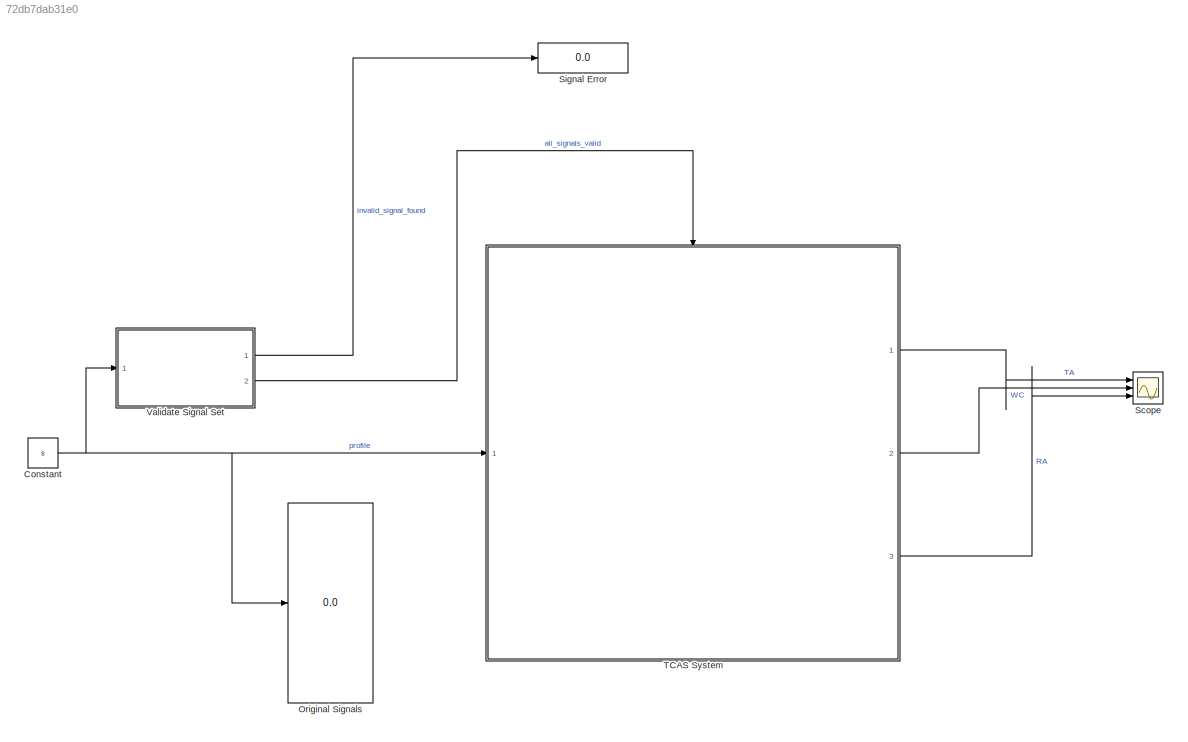
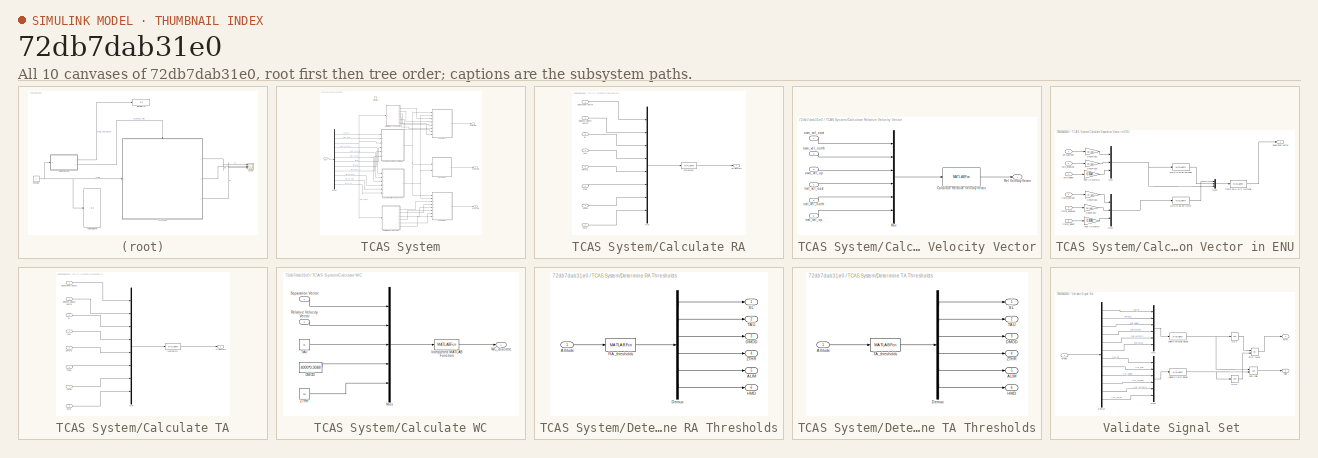
[diagram: thumbnail index - all 10 canvases of the model, root first then tree order]
MODEL slx_72db7dab31e0
KIND model
CONFIG AbsTol = auto
CONFIG EnableMultiTasking = on
CONFIG FixedStep = 1
CONFIG MaxStep = 0.2
CONFIG MinStep = auto
CONFIG RelTol = 1e-3
CONFIG SampleTimeConstraint = Unconstrained
CONFIG Solver = FixedStepDiscrete
CONFIG SolverName = FixedStepDiscrete
CONFIG StartTime = 0.0
CONFIG StopTime = 120
BLOCK [Constant] Constant
  Value = s
BLOCK [Display] Original Signals
  Decimation = 1
  Ports = [1]
BLOCK [Scope] Scope
  Floating = off
  NumInputPorts = 3
  Ports = [3]
  ScopeSpecificationString = Simulink.scopes.TimeScopeBlockCfg('CurrentConfiguration', extmgr.ConfigurationSet(extmgr.Configuration('Core','General UI',true),extmgr.Configuration('Core','Source UI',true),extmgr.Configuration('Sources','WiredSimulink',true),extmgr.Configuration('Visuals','Time Domain',true,'SerializedDisplays',{struct('MinYLimReal','0.9','MaxYLimReal','1.1','YLabelReal','','MinYLimMag','0.9','MaxYLimMag','1.1'...<+2690ch>
BLOCK [Display] Signal Error 
  Decimation = 1
  Ports = [1]
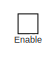
[diagram: TCAS System - part 1/2, top center region]
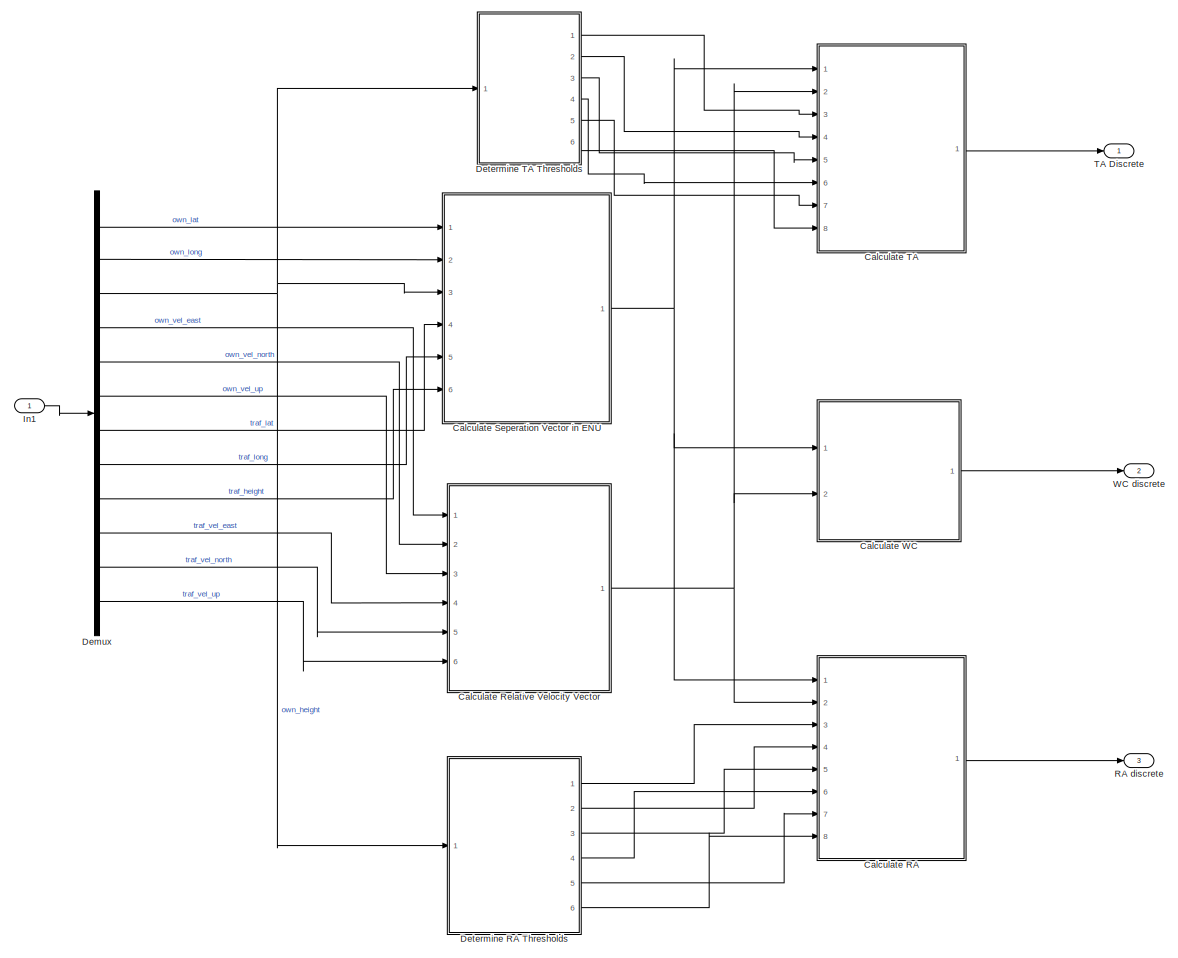
[diagram: TCAS System - part 2/2, most of the canvas]
BLOCK [SubSystem] TCAS System
  Ports = [1, 3, 1]
  RequestExecContextInheritance = off
BLOCK [SubSystem] TCAS System/Calculate RA
  Ports = [8, 1]
  RequestExecContextInheritance = off
BLOCK [Inport] TCAS System/Calculate RA/ALIM
  IconDisplay = Port number
  Port = 7
BLOCK [Inport] TCAS System/Calculate RA/DMOD
  IconDisplay = Port number
  Port = 5
BLOCK [Inport] TCAS System/Calculate RA/HMD
  IconDisplay = Port number
  Port = 8
BLOCK [Mux] TCAS System/Calculate RA/Mux
  DisplayOption = bar
  Inputs = 8
  Ports = [8, 1]
BLOCK [Outport] TCAS System/Calculate RA/RA discrete
  IconDisplay = Port number
BLOCK [Inport] TCAS System/Calculate RA/Relative Velocity Vector
  IconDisplay = Port number
  Port = 2
BLOCK [Inport] TCAS System/Calculate RA/SL
  IconDisplay = Port number
  Port = 3
BLOCK [Inport] TCAS System/Calculate RA/Separation Vector
  IconDisplay = Port number
BLOCK [Inport] TCAS System/Calculate RA/TAU
  IconDisplay = Port number
  Port = 4
BLOCK [Inport] TCAS System/Calculate RA/ZTHR 
  IconDisplay = Port number
  Port = 6
BLOCK [MATLABFcn] TCAS System/Calculate RA/computeRA
  MATLABFcn = computeRA
  Ports = [1, 1]
BLOCK [SubSystem] TCAS System/Calculate Relative Velocity Vector
  Ports = [6, 1]
  RequestExecContextInheritance = off
BLOCK [MATLABFcn] TCAS System/Calculate Relative Velocity Vector/Calculate Relative Velocity Vector 
  MATLABFcn = relVelocityVector
  Ports = [1, 1]
BLOCK [Mux] TCAS System/Calculate Relative Velocity Vector/Mux
  DisplayOption = bar
  Inputs = 6
  Ports = [6, 1]
BLOCK [Outport] TCAS System/Calculate Relative Velocity Vector/Rel Velocity Vector
  IconDisplay = Port number
BLOCK [Inport] TCAS System/Calculate Relative Velocity Vector/own_vel_east
  IconDisplay = Port number
BLOCK [Inport] TCAS System/Calculate Relative Velocity Vector/own_vel_north
  IconDisplay = Port number
  Port = 2
BLOCK [Inport] TCAS System/Calculate Relative Velocity Vector/own_vel_up
  IconDisplay = Port number
  Port = 3
BLOCK [Inport] TCAS System/Calculate Relative Velocity Vector/traf_vel_east
  IconDisplay = Port number
  Port = 4
BLOCK [Inport] TCAS System/Calculate Relative Velocity Vector/traf_vel_north
  IconDisplay = Port number
  Port = 5
BLOCK [Inport] TCAS System/Calculate Relative Velocity Vector/traf_vel_up
  IconDisplay = Port number
  Port = 6
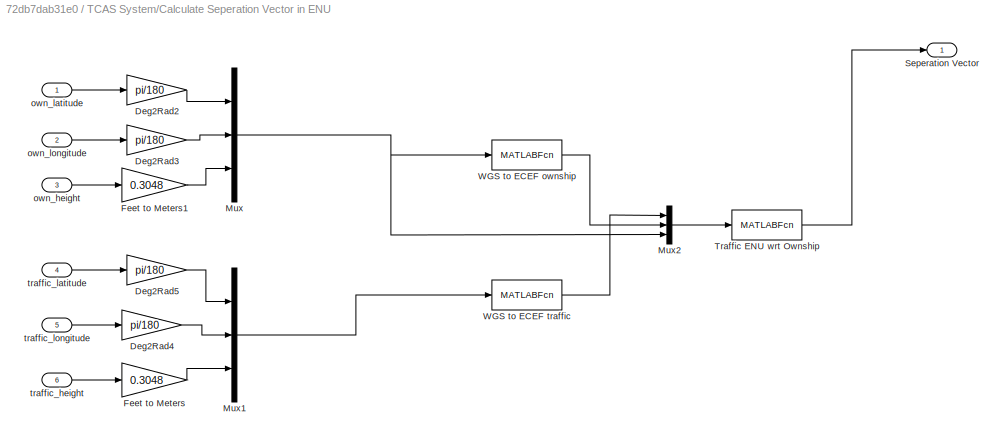
BLOCK [SubSystem] TCAS System/Calculate Seperation Vector in ENU
  Ports = [6, 1]
  RequestExecContextInheritance = off
BLOCK [Gain] TCAS System/Calculate Seperation Vector in ENU/Deg2Rad2
  Gain = pi/180
  OutDataTypeStr = Inherit: Inherit via internal rule
  ParamDataTypeStr = Inherit: Inherit via internal rule
  SaturateOnIntegerOverflow = off
BLOCK [Gain] TCAS System/Calculate Seperation Vector in ENU/Deg2Rad3
  Gain = pi/180
  OutDataTypeStr = Inherit: Inherit via internal rule
  ParamDataTypeStr = Inherit: Inherit via internal rule
  SaturateOnIntegerOverflow = off
BLOCK [Gain] TCAS System/Calculate Seperation Vector in ENU/Deg2Rad4
  Gain = pi/180
  OutDataTypeStr = Inherit: Inherit via internal rule
  ParamDataTypeStr = Inherit: Inherit via internal rule
  SaturateOnIntegerOverflow = off
BLOCK [Gain] TCAS System/Calculate Seperation Vector in ENU/Deg2Rad5
  Gain = pi/180
  OutDataTypeStr = Inherit: Inherit via internal rule
  ParamDataTypeStr = Inherit: Inherit via internal rule
  SaturateOnIntegerOverflow = off
BLOCK [Gain] TCAS System/Calculate Seperation Vector in ENU/Feet to Meters
  Gain = 0.3048
  OutDataTypeStr = Inherit: Inherit via internal rule
  ParamDataTypeStr = Inherit: Inherit via internal rule
  SaturateOnIntegerOverflow = off
BLOCK [Gain] TCAS System/Calculate Seperation Vector in ENU/Feet to Meters1
  Gain = 0.3048
  OutDataTypeStr = Inherit: Inherit via internal rule
  ParamDataTypeStr = Inherit: Inherit via internal rule
  SaturateOnIntegerOverflow = off
BLOCK [Mux] TCAS System/Calculate Seperation Vector in ENU/Mux
  DisplayOption = bar
  Inputs = 3
  Ports = [3, 1]
BLOCK [Mux] TCAS System/Calculate Seperation Vector in ENU/Mux1
  DisplayOption = bar
  Inputs = 3
  Ports = [3, 1]
BLOCK [Mux] TCAS System/Calculate Seperation Vector in ENU/Mux2
  DisplayOption = bar
  Inputs = 3
  Ports = [3, 1]
BLOCK [Outport] TCAS System/Calculate Seperation Vector in ENU/Seperation Vector
  IconDisplay = Port number
BLOCK [MATLABFcn] TCAS System/Calculate Seperation Vector in ENU/Traffic ENU wrt Ownship
  MATLABFcn = ec2enu
  Ports = [1, 1]
BLOCK [MATLABFcn] TCAS System/Calculate Seperation Vector in ENU/WGS to ECEF ownship
  MATLABFcn = wgs_to_ecef
  Ports = [1, 1]
BLOCK [MATLABFcn] TCAS System/Calculate Seperation Vector in ENU/WGS to ECEF traffic
  MATLABFcn = wgs_to_ecef
  Ports = [1, 1]
BLOCK [Inport] TCAS System/Calculate Seperation Vector in ENU/own_height
  IconDisplay = Port number
  Port = 3
BLOCK [Inport] TCAS System/Calculate Seperation Vector in ENU/own_latitude
  IconDisplay = Port number
BLOCK [Inport] TCAS System/Calculate Seperation Vector in ENU/own_longitude
  IconDisplay = Port number
  Port = 2
BLOCK [Inport] TCAS System/Calculate Seperation Vector in ENU/traffic_height
  IconDisplay = Port number
  Port = 6
BLOCK [Inport] TCAS System/Calculate Seperation Vector in ENU/traffic_latitude
  IconDisplay = Port number
  Port = 4
BLOCK [Inport] TCAS System/Calculate Seperation Vector in ENU/traffic_longitude
  IconDisplay = Port number
  Port = 5
BLOCK [SubSystem] TCAS System/Calculate TA
  Ports = [8, 1]
  RequestExecContextInheritance = off
BLOCK [Inport] TCAS System/Calculate TA/ALIM
  IconDisplay = Port number
  Port = 7
BLOCK [Inport] TCAS System/Calculate TA/DMOD
  IconDisplay = Port number
  Port = 5
BLOCK [Inport] TCAS System/Calculate TA/HMD
  IconDisplay = Port number
  Port = 8
BLOCK [Mux] TCAS System/Calculate TA/Mux
  DisplayOption = bar
  Inputs = 8
  Ports = [8, 1]
BLOCK [Inport] TCAS System/Calculate TA/Relative Velocity Vector
  IconDisplay = Port number
  Port = 2
BLOCK [Inport] TCAS System/Calculate TA/SL
  IconDisplay = Port number
  Port = 3
BLOCK [Inport] TCAS System/Calculate TA/Separation Vector
  IconDisplay = Port number
BLOCK [Outport] TCAS System/Calculate TA/TA discrete
  IconDisplay = Port number
BLOCK [Inport] TCAS System/Calculate TA/TAU
  IconDisplay = Port number
  Port = 4
BLOCK [Inport] TCAS System/Calculate TA/ZTHR 
  IconDisplay = Port number
  Port = 6
BLOCK [MATLABFcn] TCAS System/Calculate TA/computeTA
  MATLABFcn = computeTA
  Ports = [1, 1]
BLOCK [SubSystem] TCAS System/Calculate WC
  Ports = [2, 1]
  RequestExecContextInheritance = off
BLOCK [Constant] TCAS System/Calculate WC/DMOD
  Value = 4000*0.3048
BLOCK [MATLABFcn] TCAS System/Calculate WC/Interpreted MATLAB Function
  MATLABFcn = computeWC
  Ports = [1, 1]
BLOCK [Mux] TCAS System/Calculate WC/Mux
  DisplayOption = bar
  Inputs = 5
  Ports = [5, 1]
BLOCK [Inport] TCAS System/Calculate WC/Relative Velocity Vector
  IconDisplay = Port number
  Port = 2
BLOCK [Inport] TCAS System/Calculate WC/Separation Vector
  IconDisplay = Port number
BLOCK [Constant] TCAS System/Calculate WC/TAU
  Value = 35
BLOCK [Outport] TCAS System/Calculate WC/WC_discrete
  IconDisplay = Port number
BLOCK [Constant] TCAS System/Calculate WC/ZTRH
  Value = 700
BLOCK [Demux] TCAS System/Demux
  DisplayOption = bar
  Outputs = 12
  Ports = [1, 12]
BLOCK [SubSystem] TCAS System/Determine RA Thresholds
  Ports = [1, 6]
  RequestExecContextInheritance = off
BLOCK [Outport] TCAS System/Determine RA Thresholds/ALIM
  IconDisplay = Port number
  Port = 5
BLOCK [Inport] TCAS System/Determine RA Thresholds/Altitude
  IconDisplay = Port number
BLOCK [Outport] TCAS System/Determine RA Thresholds/DMOD
  IconDisplay = Port number
  Port = 3
BLOCK [Demux] TCAS System/Determine RA Thresholds/Demux
  DisplayOption = bar
  Outputs = 6
  Ports = [1, 6]
BLOCK [Outport] TCAS System/Determine RA Thresholds/HMD
  IconDisplay = Port number
  Port = 6
BLOCK [MATLABFcn] TCAS System/Determine RA Thresholds/RA_thresholds
  MATLABFcn = RA_thresholds
  Ports = [1, 1]
BLOCK [Outport] TCAS System/Determine RA Thresholds/SL
  IconDisplay = Port number
BLOCK [Outport] TCAS System/Determine RA Thresholds/TAU
  IconDisplay = Port number
  Port = 2
BLOCK [Outport] TCAS System/Determine RA Thresholds/ZTHR
  IconDisplay = Port number
  Port = 4
BLOCK [SubSystem] TCAS System/Determine TA Thresholds
  Ports = [1, 6]
  RequestExecContextInheritance = off
BLOCK [Outport] TCAS System/Determine TA Thresholds/ALIM
  IconDisplay = Port number
  Port = 5
BLOCK [Inport] TCAS System/Determine TA Thresholds/Altitude
  IconDisplay = Port number
BLOCK [Outport] TCAS System/Determine TA Thresholds/DMOD
  IconDisplay = Port number
  Port = 3
BLOCK [Demux] TCAS System/Determine TA Thresholds/Demux
  DisplayOption = bar
  Outputs = 6
  Ports = [1, 6]
BLOCK [Outport] TCAS System/Determine TA Thresholds/HMD
  IconDisplay = Port number
  Port = 6
BLOCK [Outport] TCAS System/Determine TA Thresholds/SL
  IconDisplay = Port number
BLOCK [Outport] TCAS System/Determine TA Thresholds/TAU
  IconDisplay = Port number
  Port = 2
BLOCK [MATLABFcn] TCAS System/Determine TA Thresholds/TA_thresholds
  MATLABFcn = TA_thresholds
  Ports = [1, 1]
BLOCK [Outport] TCAS System/Determine TA Thresholds/ZTHR
  IconDisplay = Port number
  Port = 4
BLOCK [EnablePort] TCAS System/Enable
  Ports = []
BLOCK [Inport] TCAS System/In1
  IconDisplay = Port number
BLOCK [Outport] TCAS System/RA discrete
  IconDisplay = Port number
  Port = 3
BLOCK [Outport] TCAS System/TA Discrete
  IconDisplay = Port number
BLOCK [Outport] TCAS System/WC discrete
  IconDisplay = Port number
  Port = 2
BLOCK [SubSystem] Validate Signal Set 
  Ports = [1, 2]
  RequestExecContextInheritance = off
BLOCK [Logic] Validate Signal Set /Both Valid
  AllPortsSameDT = off
  IconShape = distinctive
  OutDataTypeStr = boolean
  Ports = [2, 1]
BLOCK [Demux] Validate Signal Set /Demux
  DisplayOption = bar
  Outputs = 12
  Ports = [1, 12]
BLOCK [Outport] Validate Signal Set /Error
  IconDisplay = Port number
BLOCK [Logic] Validate Signal Set /Error found
  AllPortsSameDT = off
  IconShape = distinctive
  Operator = OR
  OutDataTypeStr = boolean
  Ports = [2, 1]
BLOCK [Mux] Validate Signal Set /Mux
  DisplayOption = bar
  Inputs = 6
  Ports = [6, 1]
BLOCK [Mux] Validate Signal Set /Mux1
  DisplayOption = bar
  Inputs = 6
  Ports = [6, 1]
BLOCK [Logic] Validate Signal Set /NOT
  AllPortsSameDT = off
  IconShape = distinctive
  Operator = NOT
  OutDataTypeStr = boolean
  Ports = [1, 1]
BLOCK [Logic] Validate Signal Set /NOT1
  AllPortsSameDT = off
  IconShape = distinctive
  Operator = NOT
  OutDataTypeStr = boolean
  Ports = [1, 1]
BLOCK [Outport] Validate Signal Set /Valid
  IconDisplay = Port number
  Port = 2
BLOCK [Inport] Validate Signal Set /profile
  IconDisplay = Signal name
BLOCK [MATLABFcn] Validate Signal Set /validate ownship signals
  MATLABFcn = validateSignals
  Ports = [1, 1]
BLOCK [MATLABFcn] Validate Signal Set /validate traffic signals
  MATLABFcn = validateSignals
  Ports = [1, 1]
NET Constant:1 -> Original Signals:1, TCAS System:1, Validate Signal Set :1
LINE TCAS System/Calculate RA/ALIM:1 -> TCAS System/Calculate RA/Mux:7
LINE TCAS System/Calculate RA/DMOD:1 -> TCAS System/Calculate RA/Mux:5
LINE TCAS System/Calculate RA/HMD:1 -> TCAS System/Calculate RA/Mux:8
LINE TCAS System/Calculate RA/Mux:1 -> TCAS System/Calculate RA/computeRA:1
LINE TCAS System/Calculate RA/Relative Velocity Vector:1 -> TCAS System/Calculate RA/Mux:2
LINE TCAS System/Calculate RA/SL:1 -> TCAS System/Calculate RA/Mux:3
LINE TCAS System/Calculate RA/Separation Vector:1 -> TCAS System/Calculate RA/Mux:1
LINE TCAS System/Calculate RA/TAU:1 -> TCAS System/Calculate RA/Mux:4
LINE TCAS System/Calculate RA/ZTHR :1 -> TCAS System/Calculate RA/Mux:6
LINE TCAS System/Calculate RA/computeRA:1 -> TCAS System/Calculate RA/RA discrete:1
LINE TCAS System/Calculate RA:1 -> TCAS System/RA discrete:1
LINE TCAS System/Calculate Relative Velocity Vector/Calculate Relative Velocity Vector :1 -> TCAS System/Calculate Relative Velocity Vector/Rel Velocity Vector:1
LINE TCAS System/Calculate Relative Velocity Vector/Mux:1 -> TCAS System/Calculate Relative Velocity Vector/Calculate Relative Velocity Vector :1
LINE TCAS System/Calculate Relative Velocity Vector/own_vel_east:1 -> TCAS System/Calculate Relative Velocity Vector/Mux:1
LINE TCAS System/Calculate Relative Velocity Vector/own_vel_north:1 -> TCAS System/Calculate Relative Velocity Vector/Mux:2
LINE TCAS System/Calculate Relative Velocity Vector/own_vel_up:1 -> TCAS System/Calculate Relative Velocity Vector/Mux:3
LINE TCAS System/Calculate Relative Velocity Vector/traf_vel_east:1 -> TCAS System/Calculate Relative Velocity Vector/Mux:4
LINE TCAS System/Calculate Relative Velocity Vector/traf_vel_north:1 -> TCAS System/Calculate Relative Velocity Vector/Mux:5
LINE TCAS System/Calculate Relative Velocity Vector/traf_vel_up:1 -> TCAS System/Calculate Relative Velocity Vector/Mux:6
NET TCAS System/Calculate Relative Velocity Vector:1 -> TCAS System/Calculate RA:2, TCAS System/Calculate TA:2, TCAS System/Calculate WC:2
LINE TCAS System/Calculate Seperation Vector in ENU/Deg2Rad2:1 -> TCAS System/Calculate Seperation Vector in ENU/Mux:1
LINE TCAS System/Calculate Seperation Vector in ENU/Deg2Rad3:1 -> TCAS System/Calculate Seperation Vector in ENU/Mux:2
LINE TCAS System/Calculate Seperation Vector in ENU/Deg2Rad4:1 -> TCAS System/Calculate Seperation Vector in ENU/Mux1:2
LINE TCAS System/Calculate Seperation Vector in ENU/Deg2Rad5:1 -> TCAS System/Calculate Seperation Vector in ENU/Mux1:1
LINE TCAS System/Calculate Seperation Vector in ENU/Feet to Meters1:1 -> TCAS System/Calculate Seperation Vector in ENU/Mux:3
LINE TCAS System/Calculate Seperation Vector in ENU/Feet to Meters:1 -> TCAS System/Calculate Seperation Vector in ENU/Mux1:3
LINE TCAS System/Calculate Seperation Vector in ENU/Mux1:1 -> TCAS System/Calculate Seperation Vector in ENU/WGS to ECEF traffic:1
LINE TCAS System/Calculate Seperation Vector in ENU/Mux2:1 -> TCAS System/Calculate Seperation Vector in ENU/Traffic ENU wrt Ownship:1
NET TCAS System/Calculate Seperation Vector in ENU/Mux:1 -> TCAS System/Calculate Seperation Vector in ENU/Mux2:3, TCAS System/Calculate Seperation Vector in ENU/WGS to ECEF ownship:1
LINE TCAS System/Calculate Seperation Vector in ENU/Traffic ENU wrt Ownship:1 -> TCAS System/Calculate Seperation Vector in ENU/Seperation Vector:1
LINE TCAS System/Calculate Seperation Vector in ENU/WGS to ECEF ownship:1 -> TCAS System/Calculate Seperation Vector in ENU/Mux2:2
LINE TCAS System/Calculate Seperation Vector in ENU/WGS to ECEF traffic:1 -> TCAS System/Calculate Seperation Vector in ENU/Mux2:1
LINE TCAS System/Calculate Seperation Vector in ENU/own_height:1 -> TCAS System/Calculate Seperation Vector in ENU/Feet to Meters1:1
LINE TCAS System/Calculate Seperation Vector in ENU/own_latitude:1 -> TCAS System/Calculate Seperation Vector in ENU/Deg2Rad2:1
LINE TCAS System/Calculate Seperation Vector in ENU/own_longitude:1 -> TCAS System/Calculate Seperation Vector in ENU/Deg2Rad3:1
LINE TCAS System/Calculate Seperation Vector in ENU/traffic_height:1 -> TCAS System/Calculate Seperation Vector in ENU/Feet to Meters:1
LINE TCAS System/Calculate Seperation Vector in ENU/traffic_latitude:1 -> TCAS System/Calculate Seperation Vector in ENU/Deg2Rad5:1
LINE TCAS System/Calculate Seperation Vector in ENU/traffic_longitude:1 -> TCAS System/Calculate Seperation Vector in ENU/Deg2Rad4:1
NET TCAS System/Calculate Seperation Vector in ENU:1 -> TCAS System/Calculate RA:1, TCAS System/Calculate TA:1, TCAS System/Calculate WC:1
LINE TCAS System/Calculate TA/ALIM:1 -> TCAS System/Calculate TA/Mux:7
LINE TCAS System/Calculate TA/DMOD:1 -> TCAS System/Calculate TA/Mux:5
LINE TCAS System/Calculate TA/HMD:1 -> TCAS System/Calculate TA/Mux:8
LINE TCAS System/Calculate TA/Mux:1 -> TCAS System/Calculate TA/computeTA:1
LINE TCAS System/Calculate TA/Relative Velocity Vector:1 -> TCAS System/Calculate TA/Mux:2
LINE TCAS System/Calculate TA/SL:1 -> TCAS System/Calculate TA/Mux:3
LINE TCAS System/Calculate TA/Separation Vector:1 -> TCAS System/Calculate TA/Mux:1
LINE TCAS System/Calculate TA/TAU:1 -> TCAS System/Calculate TA/Mux:4
LINE TCAS System/Calculate TA/ZTHR :1 -> TCAS System/Calculate TA/Mux:6
LINE TCAS System/Calculate TA/computeTA:1 -> TCAS System/Calculate TA/TA discrete:1
LINE TCAS System/Calculate TA:1 -> TCAS System/TA Discrete:1
LINE TCAS System/Calculate WC/DMOD:1 -> TCAS System/Calculate WC/Mux:4
LINE TCAS System/Calculate WC/Interpreted MATLAB Function:1 -> TCAS System/Calculate WC/WC_discrete:1
LINE TCAS System/Calculate WC/Mux:1 -> TCAS System/Calculate WC/Interpreted MATLAB Function:1
LINE TCAS System/Calculate WC/Relative Velocity Vector:1 -> TCAS System/Calculate WC/Mux:2
LINE TCAS System/Calculate WC/Separation Vector:1 -> TCAS System/Calculate WC/Mux:1
LINE TCAS System/Calculate WC/TAU:1 -> TCAS System/Calculate WC/Mux:3
LINE TCAS System/Calculate WC/ZTRH:1 -> TCAS System/Calculate WC/Mux:5
LINE TCAS System/Calculate WC:1 -> TCAS System/WC discrete:1
LINE TCAS System/Demux:1 -> TCAS System/Calculate Seperation Vector in ENU:1
LINE TCAS System/Demux:10 -> TCAS System/Calculate Relative Velocity Vector:4
LINE TCAS System/Demux:11 -> TCAS System/Calculate Relative Velocity Vector:5
LINE TCAS System/Demux:12 -> TCAS System/Calculate Relative Velocity Vector:6
LINE TCAS System/Demux:2 -> TCAS System/Calculate Seperation Vector in ENU:2
NET TCAS System/Demux:3 -> TCAS System/Calculate Seperation Vector in ENU:3, TCAS System/Determine RA Thresholds:1, TCAS System/Determine TA Thresholds:1
LINE TCAS System/Demux:4 -> TCAS System/Calculate Relative Velocity Vector:1
LINE TCAS System/Demux:5 -> TCAS System/Calculate Relative Velocity Vector:2
LINE TCAS System/Demux:6 -> TCAS System/Calculate Relative Velocity Vector:3
LINE TCAS System/Demux:7 -> TCAS System/Calculate Seperation Vector in ENU:4
LINE TCAS System/Demux:8 -> TCAS System/Calculate Seperation Vector in ENU:5
LINE TCAS System/Demux:9 -> TCAS System/Calculate Seperation Vector in ENU:6
LINE TCAS System/Determine RA Thresholds/Altitude:1 -> TCAS System/Determine RA Thresholds/RA_thresholds:1
LINE TCAS System/Determine RA Thresholds/Demux:1 -> TCAS System/Determine RA Thresholds/SL:1
LINE TCAS System/Determine RA Thresholds/Demux:2 -> TCAS System/Determine RA Thresholds/TAU:1
LINE TCAS System/Determine RA Thresholds/Demux:3 -> TCAS System/Determine RA Thresholds/DMOD:1
LINE TCAS System/Determine RA Thresholds/Demux:4 -> TCAS System/Determine RA Thresholds/ZTHR:1
LINE TCAS System/Determine RA Thresholds/Demux:5 -> TCAS System/Determine RA Thresholds/ALIM:1
LINE TCAS System/Determine RA Thresholds/Demux:6 -> TCAS System/Determine RA Thresholds/HMD:1
LINE TCAS System/Determine RA Thresholds/RA_thresholds:1 -> TCAS System/Determine RA Thresholds/Demux:1
LINE TCAS System/Determine RA Thresholds:1 -> TCAS System/Calculate RA:3
LINE TCAS System/Determine RA Thresholds:2 -> TCAS System/Calculate RA:4
LINE TCAS System/Determine RA Thresholds:3 -> TCAS System/Calculate RA:5
LINE TCAS System/Determine RA Thresholds:4 -> TCAS System/Calculate RA:6
LINE TCAS System/Determine RA Thresholds:5 -> TCAS System/Calculate RA:7
LINE TCAS System/Determine RA Thresholds:6 -> TCAS System/Calculate RA:8
LINE TCAS System/Determine TA Thresholds/Altitude:1 -> TCAS System/Determine TA Thresholds/TA_thresholds:1
LINE TCAS System/Determine TA Thresholds/Demux:1 -> TCAS System/Determine TA Thresholds/SL:1
LINE TCAS System/Determine TA Thresholds/Demux:2 -> TCAS System/Determine TA Thresholds/TAU:1
LINE TCAS System/Determine TA Thresholds/Demux:3 -> TCAS System/Determine TA Thresholds/DMOD:1
LINE TCAS System/Determine TA Thresholds/Demux:4 -> TCAS System/Determine TA Thresholds/ZTHR:1
LINE TCAS System/Determine TA Thresholds/Demux:5 -> TCAS System/Determine TA Thresholds/ALIM:1
LINE TCAS System/Determine TA Thresholds/Demux:6 -> TCAS System/Determine TA Thresholds/HMD:1
LINE TCAS System/Determine TA Thresholds/TA_thresholds:1 -> TCAS System/Determine TA Thresholds/Demux:1
LINE TCAS System/Determine TA Thresholds:1 -> TCAS System/Calculate TA:3
LINE TCAS System/Determine TA Thresholds:2 -> TCAS System/Calculate TA:4
LINE TCAS System/Determine TA Thresholds:3 -> TCAS System/Calculate TA:5
LINE TCAS System/Determine TA Thresholds:4 -> TCAS System/Calculate TA:6
LINE TCAS System/Determine TA Thresholds:5 -> TCAS System/Calculate TA:7
LINE TCAS System/Determine TA Thresholds:6 -> TCAS System/Calculate TA:8
LINE TCAS System/In1:1 -> TCAS System/Demux:1
LINE TCAS System:1 -> Scope:1
LINE TCAS System:2 -> Scope:2
LINE TCAS System:3 -> Scope:3
LINE Validate Signal Set /Both Valid:1 -> Validate Signal Set /Valid:1
LINE Validate Signal Set /Demux:1 -> Validate Signal Set /Mux:1
LINE Validate Signal Set /Demux:10 -> Validate Signal Set /Mux1:4
LINE Validate Signal Set /Demux:11 -> Validate Signal Set /Mux1:5
LINE Validate Signal Set /Demux:12 -> Validate Signal Set /Mux1:6
LINE Validate Signal Set /Demux:2 -> Validate Signal Set /Mux:2
LINE Validate Signal Set /Demux:3 -> Validate Signal Set /Mux:3
LINE Validate Signal Set /Demux:4 -> Validate Signal Set /Mux:4
LINE Validate Signal Set /Demux:5 -> Validate Signal Set /Mux:5
LINE Validate Signal Set /Demux:6 -> Validate Signal Set /Mux:6
LINE Validate Signal Set /Demux:7 -> Validate Signal Set /Mux1:1
LINE Validate Signal Set /Demux:8 -> Validate Signal Set /Mux1:2
LINE Validate Signal Set /Demux:9 -> Validate Signal Set /Mux1:3
LINE Validate Signal Set /Error found:1 -> Validate Signal Set /Error:1
LINE Validate Signal Set /Mux1:1 -> Validate Signal Set /validate traffic signals:1
LINE Validate Signal Set /Mux:1 -> Validate Signal Set /validate ownship signals:1
LINE Validate Signal Set /NOT1:1 -> Validate Signal Set /Error found:2
LINE Validate Signal Set /NOT:1 -> Validate Signal Set /Error found:1
LINE Validate Signal Set /profile:1 -> Validate Signal Set /Demux:1
NET Validate Signal Set /validate ownship signals:1 -> Validate Signal Set /Both Valid:1, Validate Signal Set /NOT:1
NET Validate Signal Set /validate traffic signals:1 -> Validate Signal Set /Both Valid:2, Validate Signal Set /NOT1:1
LINE Validate Signal Set :1 -> Signal Error :1
LINE Validate Signal Set :2 -> TCAS System:enable
note: NET lines group one-source signal fan-out (src -> all destinations, sorted); 1:1 wires keep LINE
